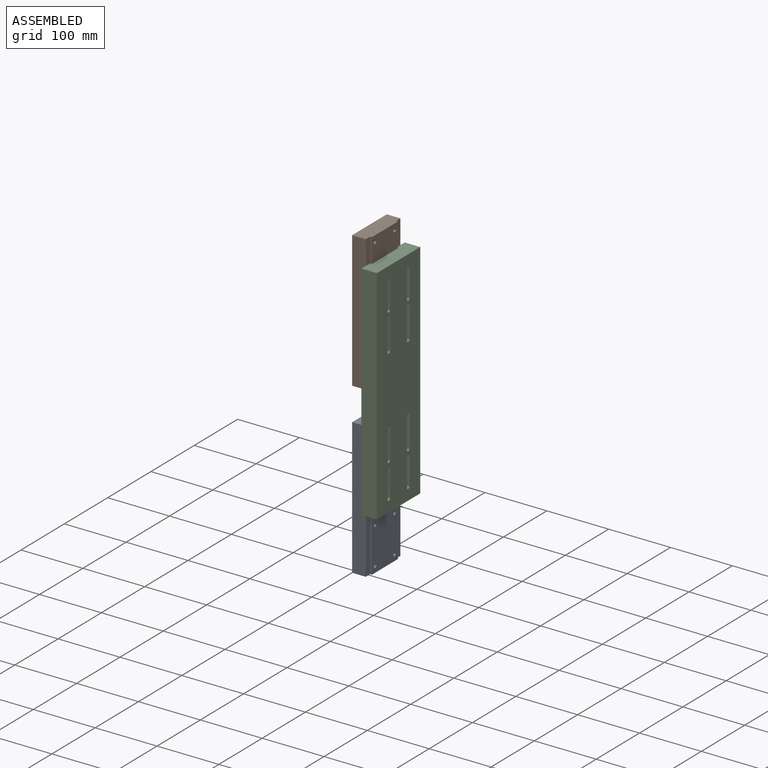
[diagram: assembled view]
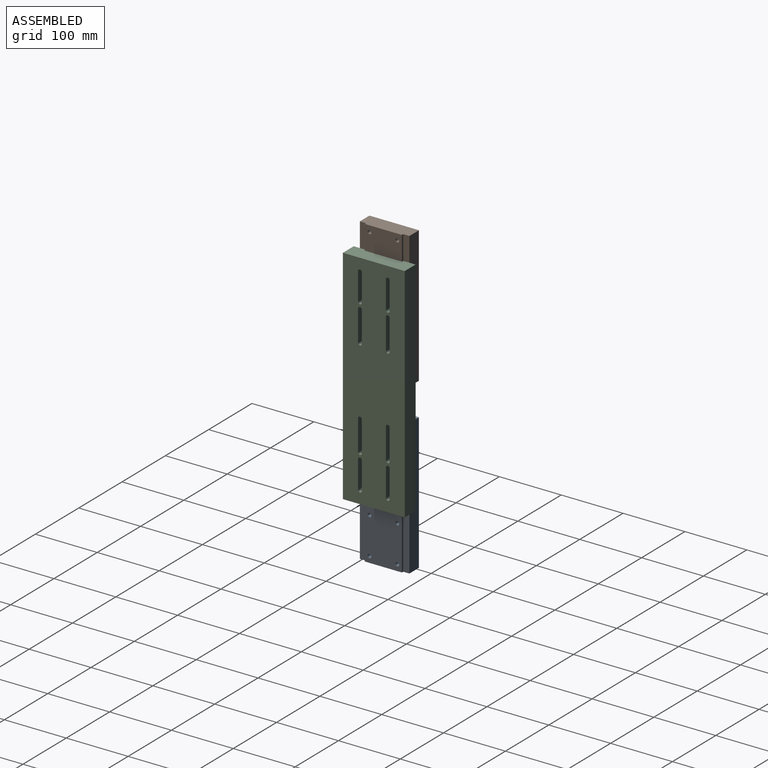
[diagram: assembled view, second angle]
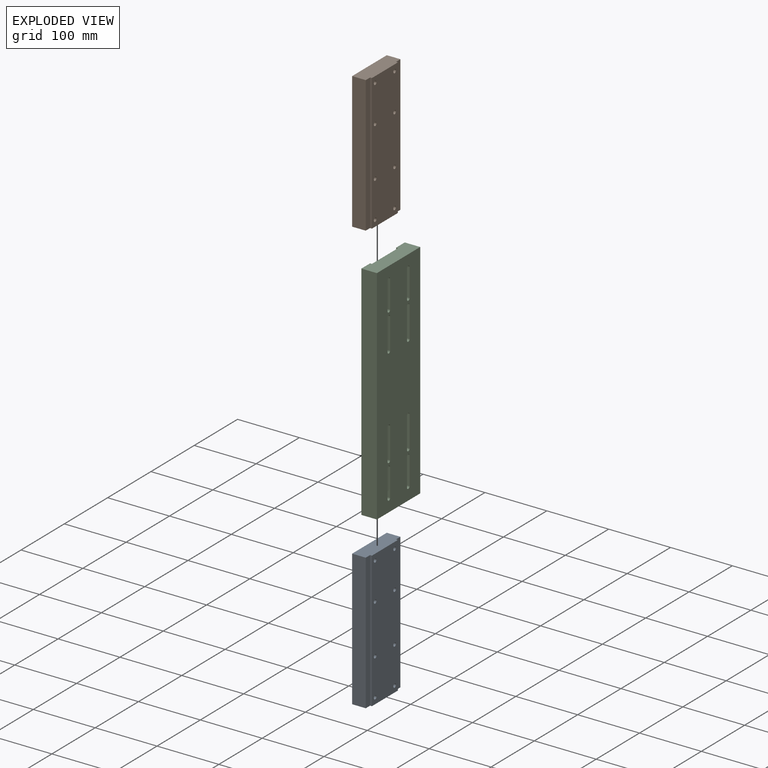
[diagram: exploded view]
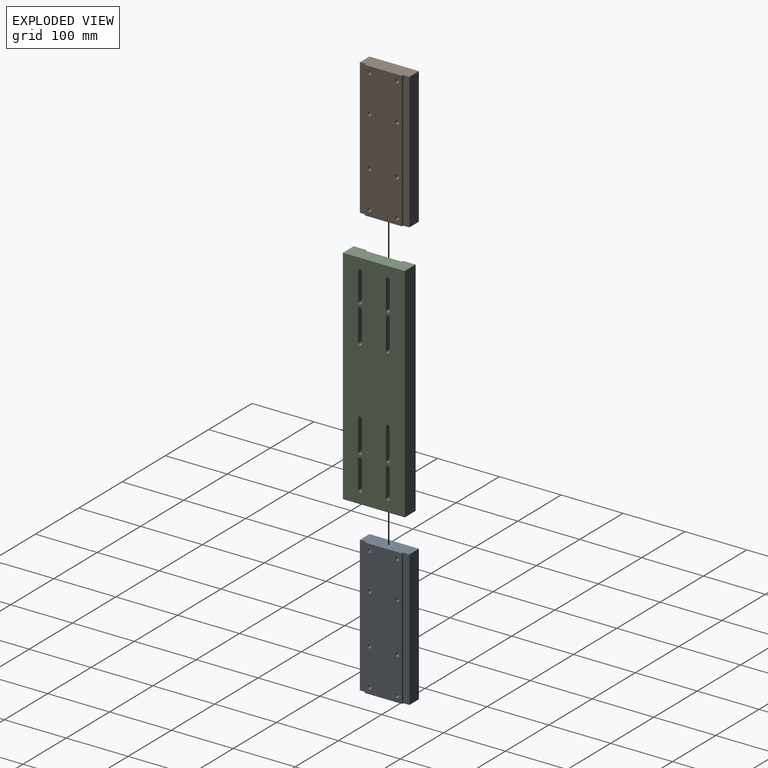
[diagram: exploded view, second angle]
ASSEMBLY  parts=3 mates=2
PART A: 18 faces, bbox 25x80x220 mm
  f0: plane 220x60mm, normal (-1,0,0), area 12973.8mm2, adj f3,f4,f8,f9,f10,f11,f12,f13
  f1: plane 220x80mm, normal (1,0,0), area 17373.8mm2, adj f6,f7,f8,f9,f10,f11,f12,f13
  f2: plane 220x10mm, normal (-1,0,0), area 2200mm2, adj f3,f7,f8,f9
  f3: plane 220x3mm, normal (0,1,0), area 660mm2, adj f0,f2,f8,f9
  f4: plane 220x3mm, normal (0,-1,0), area 660mm2, adj f0,f5,f8,f9
  f5: plane 220x10mm, normal (-1,0,0), area 2200mm2, adj f4,f6,f8,f9
  f6: plane 220x22mm, normal (0,-1,0), area 4840mm2, adj f1,f5,f8,f9
  f7: plane 220x22mm, normal (0,1,0), area 4840mm2, adj f1,f2,f8,f9
  f8: plane 80x25mm, normal (0,0,1), area 1940mm2, adj f0,f1,f2,f3,f4,f5,f6,f7
  f9: plane 80x25mm, normal (0,0,-1), area 1940mm2, adj f0,f1,f2,f3,f4,f5,f6,f7
  f10: cylinder r=3mm len=25mm, axis (-1,0,0), area 471.2mm2, adj f0,f1
  f11: cylinder r=3mm len=25mm, axis (-1,0,0), area 471.2mm2, adj f0,f1
  f12: cylinder r=3mm len=25mm, axis (-1,0,0), area 471.2mm2, adj f0,f1
  f13: cylinder r=3mm len=25mm, axis (-1,0,0), area 471.2mm2, adj f0,f1
  f14: cylinder r=3mm len=25mm, axis (-1,0,0), area 471.2mm2, adj f0,f1
  f15: cylinder r=3mm len=25mm, axis (-1,0,0), area 471.2mm2, adj f0,f1
  f16: cylinder r=3mm len=25mm, axis (-1,0,0), area 471.2mm2, adj f0,f1
  f17: cylinder r=3mm len=25mm, axis (-1,0,0), area 471.2mm2, adj f0,f1
PART B: same geometry as A
PART C: 42 faces, bbox 25x100x360 mm
  f0: plane 360x100mm, normal (1,0,0), area 33496.5mm2, adj f2,f7,f8,f9,f10,f11,f12,f13
  f1: plane 360x60mm, normal (-1,0,0), area 19096.6mm2, adj f4,f5,f8,f9,f10,f11,f12,f13
  f2: plane 360x25mm, normal (0,1,0), area 9000mm2, adj f0,f3,f8,f9
  f3: plane 360x20mm, normal (-1,0,0), area 7200mm2, adj f2,f4,f8,f9
  f4: plane 360x3mm, normal (0,-1,0), area 1080mm2, adj f1,f3,f8,f9
  f5: plane 360x3mm, normal (0,1,0), area 1080mm2, adj f1,f6,f8,f9
  f6: plane 360x20mm, normal (-1,0,0), area 7200mm2, adj f5,f7,f8,f9
  f7: plane 360x25mm, normal (0,-1,0), area 9000mm2, adj f0,f6,f8,f9
  f8: plane 100x25mm, normal (0,0,1), area 2320mm2, adj f0,f1,f2,f3,f4,f5,f6,f7
  f9: plane 100x25mm, normal (0,0,-1), area 2320mm2, adj f0,f1,f2,f3,f4,f5,f6,f7
  f10: plane 45.07x22mm, normal (0,1,0), area 991.5mm2, adj f0,f1,f11,f13
  f11: cylinder r=3mm len=22mm, axis (-1,0,0), area 205.9mm2, adj f0,f1,f10,f12
  f12: plane 44.76x22mm, normal (0,-1,0), area 984.7mm2, adj f0,f1,f11,f13
  f13: cylinder r=3mm len=22mm, axis (-1,0,0), area 212.6mm2, adj f0,f1,f10,f12
  f14: cylinder r=3mm len=22mm, axis (-1,0,0), area 212.6mm2, adj f0,f1,f15,f17
  f15: plane 44.76x22mm, normal (0,-1,0), area 984.7mm2, adj f0,f1,f14,f16
  f16: cylinder r=3mm len=22mm, axis (-1,0,0), area 205.9mm2, adj f0,f1,f15,f17
  f17: plane 45.07x22mm, normal (0,1,0), area 991.5mm2, adj f0,f1,f14,f16
  f18: plane 45.07x22mm, normal (0,-1,0), area 991.5mm2, adj f0,f1,f19,f21
  f19: cylinder r=3mm len=22mm, axis (-1,0,0), area 205.9mm2, adj f0,f1,f18,f20
  f20: plane 44.76x22mm, normal (0,1,0), area 984.7mm2, adj f0,f1,f19,f21
  f21: cylinder r=3mm len=22mm, axis (-1,0,0), area 212.6mm2, adj f0,f1,f18,f20
  f22: plane 49.9x22mm, normal (0,1,0), area 1097.8mm2, adj f0,f1,f23,f25
  f23: cylinder r=3mm len=22mm, axis (-1,0,0), area 211.8mm2, adj f0,f1,f22,f24
  f24: plane 49.96x22mm, normal (0,-1,0), area 1099.2mm2, adj f0,f1,f23,f25
  f25: cylinder r=3mm len=22mm, axis (-1,0,0), area 204.7mm2, adj f0,f1,f22,f24
  f26: plane 49.96x22mm, normal (0,1,0), area 1099.2mm2, adj f0,f1,f27,f29
  f27: cylinder r=3mm len=22mm, axis (-1,0,0), area 211.8mm2, adj f0,f1,f26,f28
  f28: plane 49.9x22mm, normal (0,-1,0), area 1097.8mm2, adj f0,f1,f27,f29
  f29: cylinder r=3mm len=22mm, axis (-1,0,0), area 204.7mm2, adj f0,f1,f26,f28
  f30: plane 49.96x22mm, normal (0,1,0), area 1099.2mm2, adj f0,f1,f31,f33
  f31: cylinder r=3mm len=22mm, axis (-1,0,0), area 204.7mm2, adj f0,f1,f30,f32
  f32: plane 49.9x22mm, normal (0,-1,0), area 1097.8mm2, adj f0,f1,f31,f33
  f33: cylinder r=3mm len=22mm, axis (-1,0,0), area 211.8mm2, adj f0,f1,f30,f32
  f34: plane 49.96x22mm, normal (0,-1,0), area 1099.2mm2, adj f0,f1,f35,f37
  f35: cylinder r=3mm len=22mm, axis (-1,0,0), area 211.8mm2, adj f0,f1,f34,f36
  f36: plane 49.9x22mm, normal (0,1,0), area 1097.8mm2, adj f0,f1,f35,f37
  f37: cylinder r=3mm len=22mm, axis (-1,0,0), area 204.7mm2, adj f0,f1,f34,f36
  f38: plane 45.07x22mm, normal (0,-1,0), area 991.5mm2, adj f0,f1,f39,f41
  f39: cylinder r=3mm len=22mm, axis (-1,0,0), area 212.6mm2, adj f0,f1,f38,f40
  f40: plane 44.76x22mm, normal (0,1,0), area 984.7mm2, adj f0,f1,f39,f41
  f41: cylinder r=3mm len=22mm, axis (-1,0,0), area 205.9mm2, adj f0,f1,f38,f40
PLACE A rot(axis=(0,-1,0),180deg) t=(158.37,-17.71,-70.69)mm
PLACE B rot(axis=(0,0,-1),180deg) t=(158.37,-17.71,202.61)mm
PLACE C rot(axis=(0.48,0.12,-0.87),0deg) t=(180.37,-17.71,-86.45)mm
MATE slider B.f8 <-> C.f8  axis (0,0,1) through (170.87,12.29,312.61)mm
MATE slider C.f9 <-> A.f8  axis (0,0,-1) through (170.87,12.29,-86.45)mm
